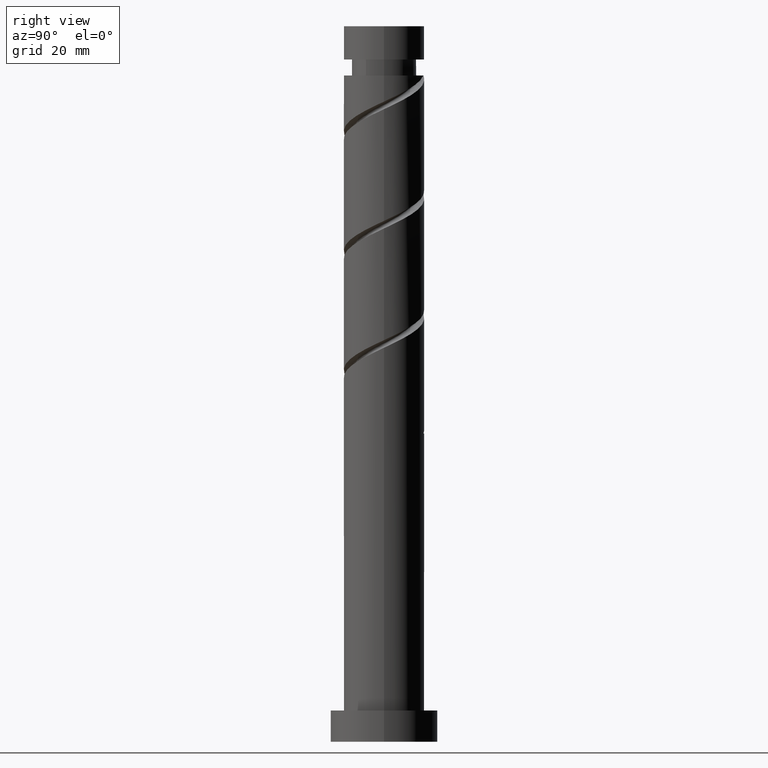
[diagram: clean part render]
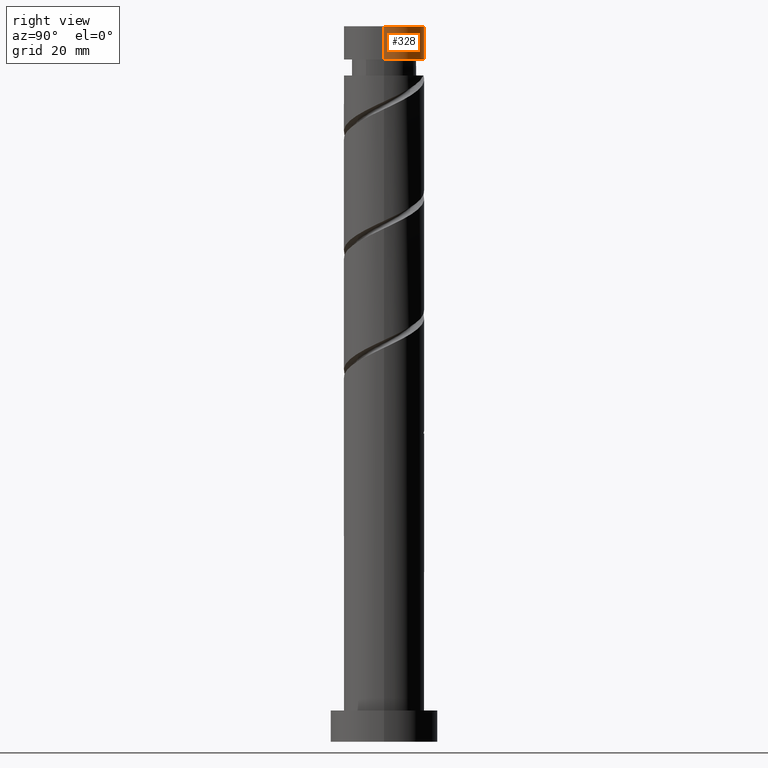
[diagram: same view with one face highlighted and labeled with its STEP entity id]
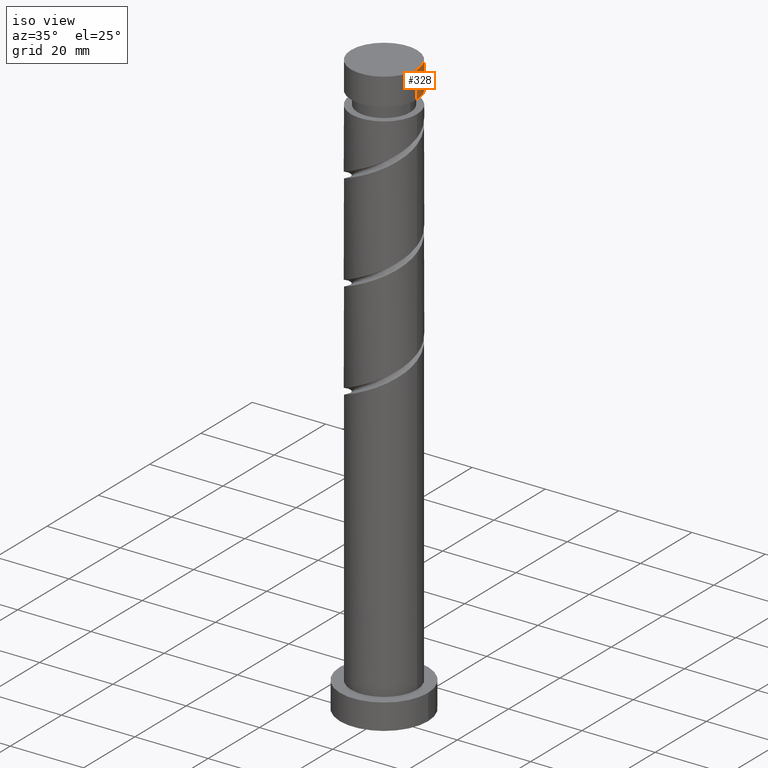
[diagram: same view with one face highlighted and labeled with its STEP entity id]
A machine part, right view. The second image highlights one B-rep face of the part: STEP entity #328.
A second angle (iso view) of the same face is appended — the face is thin or edge-on in the first view.
In plain terms, the highlighted cylindrical surface (partial cylindrical patch) has radius 9 mm, axis along (-0, -0, -1).
Its self-contained STEP definition (entity closure, byte-faithful):
#35 = EDGE_CURVE ( 'NONE', #1368, #1239, #1325, .T. ) ;
#53 = CARTESIAN_POINT ( 'NONE',  ( 0.000000000000000000, 0.000000000000000000, 160.0000000000000000 ) ) ;
#105 = DIRECTION ( 'NONE',  ( 0.000000000000000000, 0.000000000000000000, 1.000000000000000000 ) ) ;
#194 = DIRECTION ( 'NONE',  ( -0.000000000000000000, -0.000000000000000000, -1.000000000000000000 ) ) ;
#233 = VECTOR ( 'NONE', #194, 1000.000000000000000 ) ;
#309 = FACE_OUTER_BOUND ( 'NONE', #1143, .T. ) ;
#324 = VERTEX_POINT ( 'NONE', #1095 ) ;
#328 = ADVANCED_FACE ( 'NONE', ( #309 ), #1358, .T. ) ;
#359 = CARTESIAN_POINT ( 'NONE',  ( -9.000000000000000000, 0.000000000000000000, 160.0000000000000000 ) ) ;
#399 = VECTOR ( 'NONE', #1594, 1000.000000000000000 ) ;
#454 = DIRECTION ( 'NONE',  ( -1.000000000000000000, 0.000000000000000000, 0.000000000000000000 ) ) ;
#475 = VERTEX_POINT ( 'NONE', #1597 ) ;
#509 = ORIENTED_EDGE ( 'NONE', *, *, #35, .F. ) ;
#512 = CARTESIAN_POINT ( 'NONE',  ( 9.000000000000000000, 1.102182119232617714E-15, 160.0000000000000000 ) ) ;
#610 = ORIENTED_EDGE ( 'NONE', *, *, #1070, .F. ) ;
#745 = CARTESIAN_POINT ( 'NONE',  ( 0.000000000000000000, 0.000000000000000000, 160.0000000000000000 ) ) ;
#833 = AXIS2_PLACEMENT_3D ( 'NONE', #1341, #1449, #1438 ) ;
#842 = EDGE_CURVE ( 'NONE', #475, #324, #1268, .T. ) ;
#882 = ORIENTED_EDGE ( 'NONE', *, *, #842, .F. ) ;
#1026 = AXIS2_PLACEMENT_3D ( 'NONE', #745, #105, #1512 ) ;
#1070 = EDGE_CURVE ( 'NONE', #1239, #475, #1481, .T. ) ;
#1095 = CARTESIAN_POINT ( 'NONE',  ( 8.999999999999994671, 1.102182119232617319E-15, 152.5625043541949708 ) ) ;
#1103 = CARTESIAN_POINT ( 'NONE',  ( -9.000000000000000000, 0.000000000000000000, 160.0000000000000000 ) ) ;
#1143 = EDGE_LOOP ( 'NONE', ( #509, #1412, #882, #610 ) ) ;
#1239 = VERTEX_POINT ( 'NONE', #359 ) ;
#1259 = LINE ( 'NONE', #1364, #233 ) ;
#1268 = CIRCLE ( 'NONE', #833, 8.999999999999994671 ) ;
#1325 = CIRCLE ( 'NONE', #1026, 9.000000000000000000 ) ;
#1341 = CARTESIAN_POINT ( 'NONE',  ( 0.000000000000000000, 0.000000000000000000, 152.5625043541949708 ) ) ;
#1358 = CYLINDRICAL_SURFACE ( 'NONE', #1627, 9.000000000000000000 ) ;
#1364 = CARTESIAN_POINT ( 'NONE',  ( 9.000000000000000000, 1.102182119232617714E-15, 160.0000000000000000 ) ) ;
#1368 = VERTEX_POINT ( 'NONE', #512 ) ;
#1412 = ORIENTED_EDGE ( 'NONE', *, *, #1579, .T. ) ;
#1438 = DIRECTION ( 'NONE',  ( -1.000000000000000000, 0.000000000000000000, 0.000000000000000000 ) ) ;
#1449 = DIRECTION ( 'NONE',  ( -0.000000000000000000, -0.000000000000000000, -1.000000000000000000 ) ) ;
#1481 = LINE ( 'NONE', #1103, #399 ) ;
#1490 = DIRECTION ( 'NONE',  ( -0.000000000000000000, -0.000000000000000000, -1.000000000000000000 ) ) ;
#1512 = DIRECTION ( 'NONE',  ( 1.000000000000000000, 0.000000000000000000, 0.000000000000000000 ) ) ;
#1579 = EDGE_CURVE ( 'NONE', #1368, #324, #1259, .T. ) ;
#1594 = DIRECTION ( 'NONE',  ( -0.000000000000000000, -0.000000000000000000, -1.000000000000000000 ) ) ;
#1597 = CARTESIAN_POINT ( 'NONE',  ( -8.999999999999994671, 0.000000000000000000, 152.5625043541949708 ) ) ;
#1627 = AXIS2_PLACEMENT_3D ( 'NONE', #53, #1490, #454 ) ;